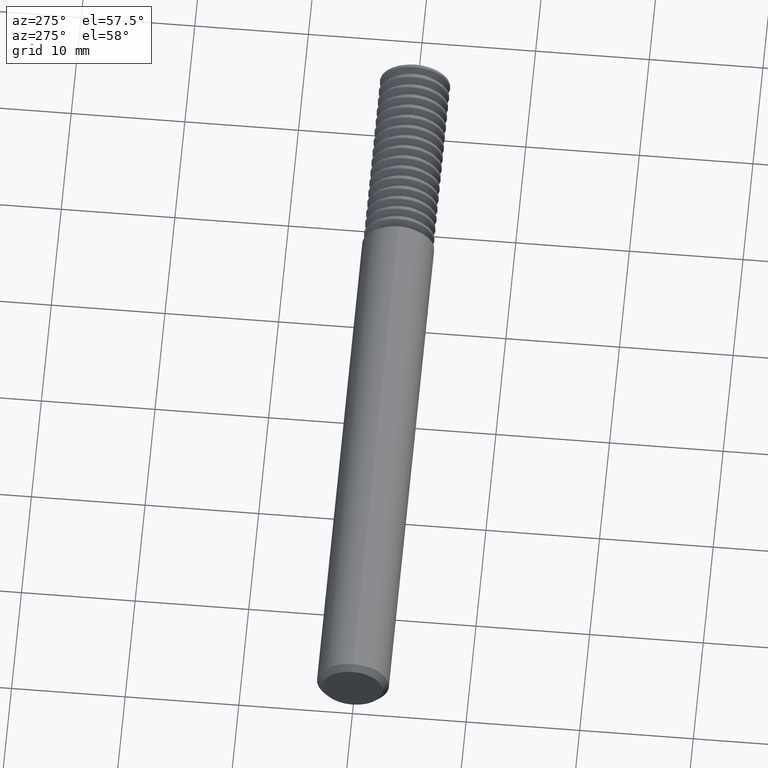
[diagram: clean part render]
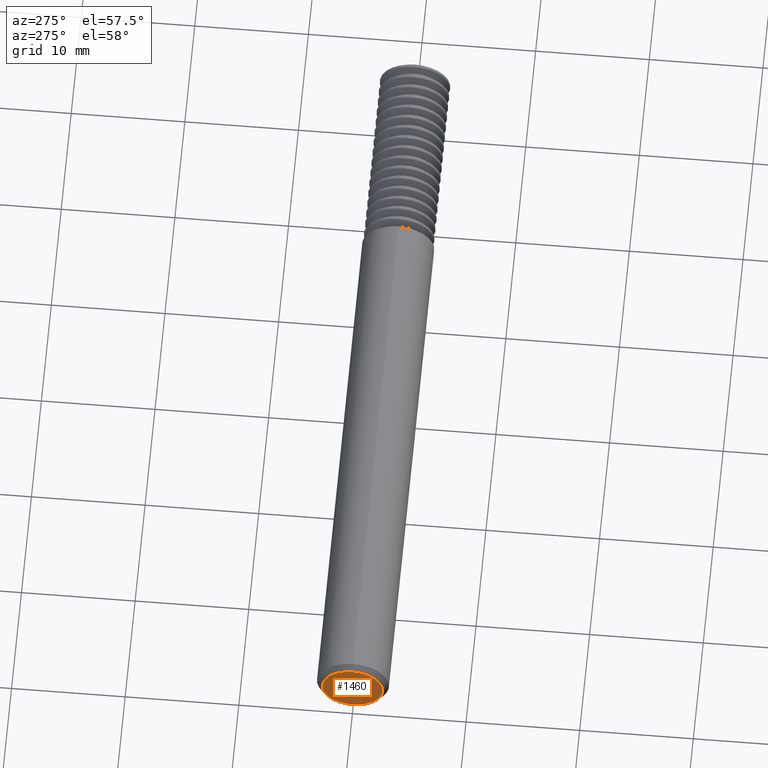
[diagram: same view with one face highlighted and labeled with its STEP entity id]
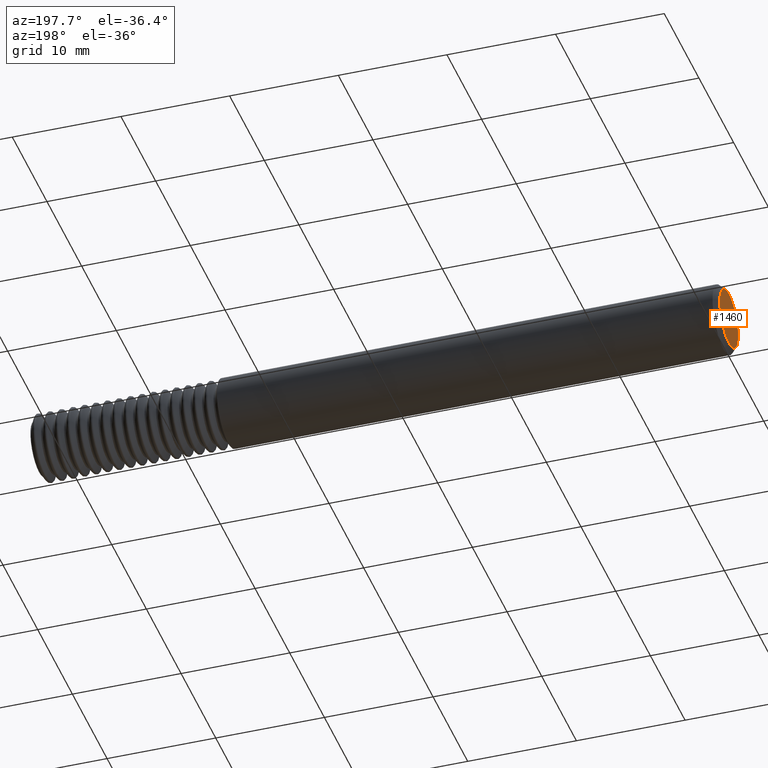
[diagram: same view with one face highlighted and labeled with its STEP entity id]
A machine part, auxiliary view. The second image highlights one B-rep face of the part: STEP entity #1460.
A second angle (auxiliary view) of the same face is appended — the face is thin or edge-on in the first view.
In plain terms, the highlighted planar face has unit normal (1, 0, 0).
Its self-contained STEP definition (entity closure, byte-faithful):
#24 = PLANE ( 'NONE',  #145 ) ;
#145 = AXIS2_PLACEMENT_3D ( 'NONE', #1116, #2174, #799 ) ;
#456 = CIRCLE ( 'NONE', #2575, 0.1048500000000003873 ) ;
#487 = DIRECTION ( 'NONE',  ( -1.000000000000000000, -0.000000000000000000, -0.000000000000000000 ) ) ;
#538 = VERTEX_POINT ( 'NONE', #977 ) ;
#728 = AXIS2_PLACEMENT_3D ( 'NONE', #1853, #487, #3193 ) ;
#799 = DIRECTION ( 'NONE',  ( 0.000000000000000000, 0.000000000000000000, -1.000000000000000000 ) ) ;
#862 = CARTESIAN_POINT ( 'NONE',  ( 0.000000000000000000, 1.406506848820737837E-17, 0.1048500000000003873 ) ) ;
#977 = CARTESIAN_POINT ( 'NONE',  ( 0.000000000000000000, 0.000000000000000000, -0.1048500000000003873 ) ) ;
#1004 = DIRECTION ( 'NONE',  ( -1.000000000000000000, -0.000000000000000000, -0.000000000000000000 ) ) ;
#1116 = CARTESIAN_POINT ( 'NONE',  ( 0.000000000000000000, 0.000000000000000000, 0.000000000000000000 ) ) ;
#1460 = ADVANCED_FACE ( 'NONE', ( #2485 ), #24, .F. ) ;
#1475 = ORIENTED_EDGE ( 'NONE', *, *, #2547, .T. ) ;
#1807 = VERTEX_POINT ( 'NONE', #862 ) ;
#1840 = DIRECTION ( 'NONE',  ( 0.000000000000000000, 0.000000000000000000, -1.000000000000000000 ) ) ;
#1853 = CARTESIAN_POINT ( 'NONE',  ( 0.000000000000000000, 0.000000000000000000, 0.000000000000000000 ) ) ;
#2135 = EDGE_CURVE ( 'NONE', #538, #1807, #456, .T. ) ;
#2174 = DIRECTION ( 'NONE',  ( 1.000000000000000000, 0.000000000000000000, 0.000000000000000000 ) ) ;
#2407 = CARTESIAN_POINT ( 'NONE',  ( 0.000000000000000000, 0.000000000000000000, 0.000000000000000000 ) ) ;
#2434 = ORIENTED_EDGE ( 'NONE', *, *, #2135, .T. ) ;
#2485 = FACE_OUTER_BOUND ( 'NONE', #3024, .T. ) ;
#2547 = EDGE_CURVE ( 'NONE', #1807, #538, #3194, .T. ) ;
#2575 = AXIS2_PLACEMENT_3D ( 'NONE', #2407, #1004, #1840 ) ;
#3024 = EDGE_LOOP ( 'NONE', ( #2434, #1475 ) ) ;
#3193 = DIRECTION ( 'NONE',  ( 0.000000000000000000, 0.000000000000000000, -1.000000000000000000 ) ) ;
#3194 = CIRCLE ( 'NONE', #728, 0.1048500000000003873 ) ;